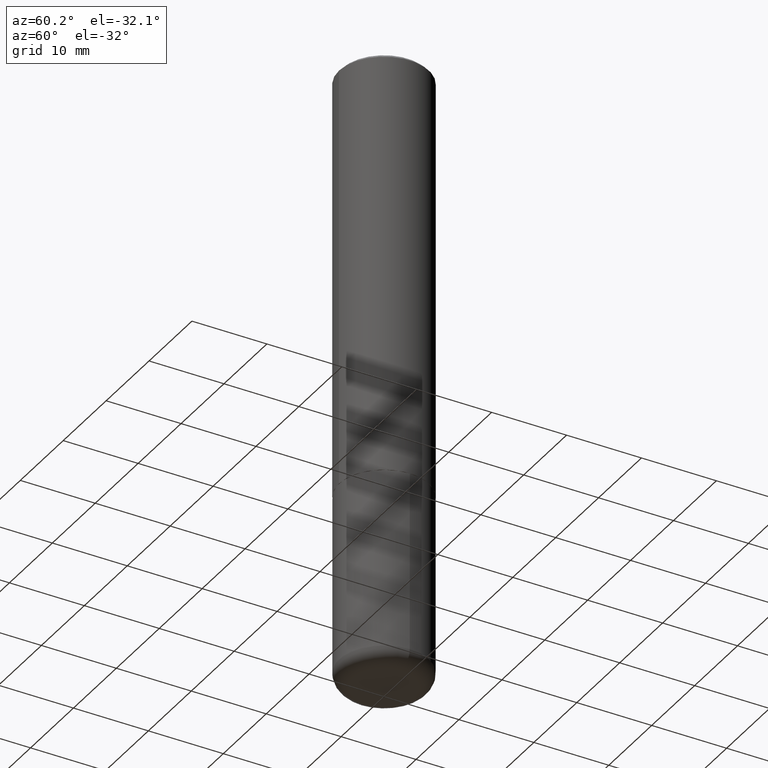
[diagram: clean part render]
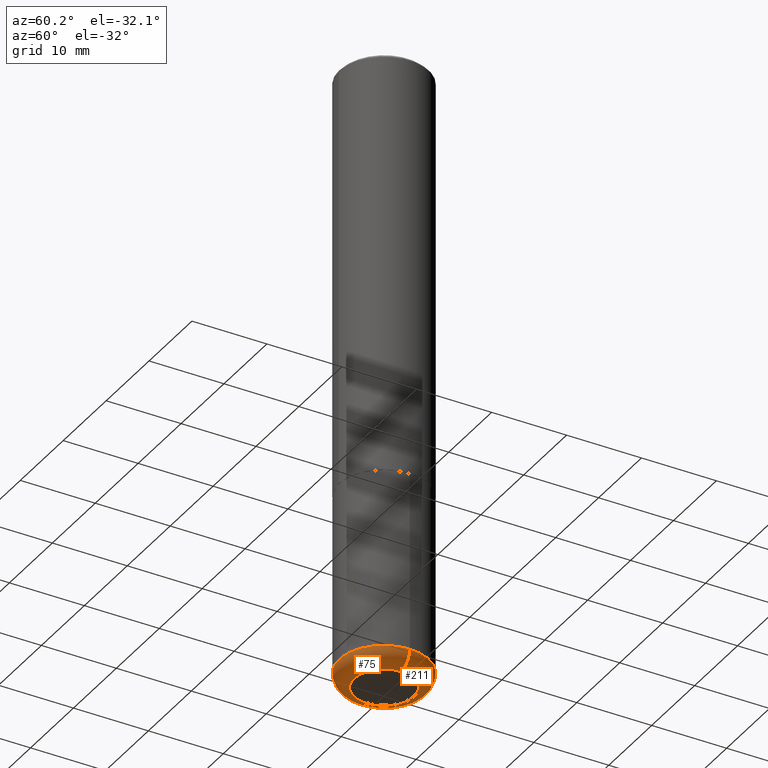
[diagram: same view with one multi-face feature highlighted, each face labeled with its STEP entity id]
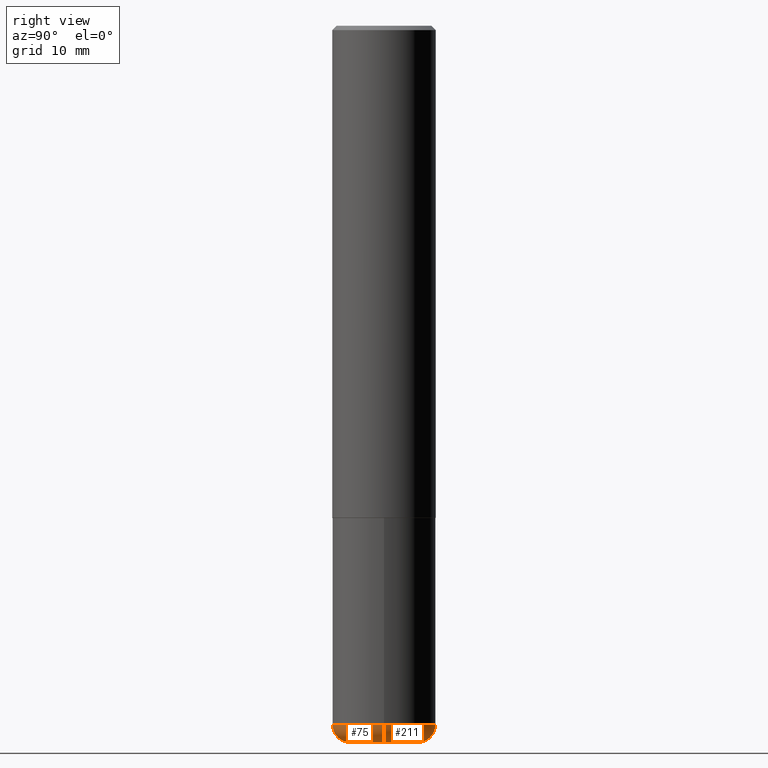
[diagram: same view with one multi-face feature highlighted, each face labeled with its STEP entity id]
A machine part, auxiliary view. The highlighted faces form ONE feature: a constant-radius fillet chain: 2 tangent blend faces with common blend radius 1.999 mm. The faces share edges in the B-rep.
A second angle (right view) of the same feature is appended — it is thin or edge-on in the first view.
Their STEP definitions:
[1] entity #75 (Torus):
#1 = ORIENTED_EDGE ( 'NONE', *, *, #108, .T. ) ;
#10 = VERTEX_POINT ( 'NONE', #325 ) ;
#36 = AXIS2_PLACEMENT_3D ( 'NONE', #192, #101, #74 ) ;
#43 = CIRCLE ( 'NONE', #167, 0.1575000000000000011 ) ;
#44 = DIRECTION ( 'NONE',  ( -2.445468806185136597E-29, 3.491481338843145583E-15, 1.000000000000000000 ) ) ;
#62 = CIRCLE ( 'NONE', #112, 0.2362000000000000210 ) ;
#64 = EDGE_CURVE ( 'NONE', #378, #410, #166, .T. ) ;
#71 = CARTESIAN_POINT ( 'NONE',  ( 7.798600022924401307E-29, -1.113433398957079310E-14, -3.189000000000000501 ) ) ;
#74 = DIRECTION ( 'NONE',  ( -1.000000000000000000, 7.105427357600995548E-15, 0.000000000000000000 ) ) ;
#75 = ADVANCED_FACE ( 'NONE', ( #263 ), #345, .T. ) ;
#101 = DIRECTION ( 'NONE',  ( 7.105427357601001859E-15, 1.000000000000000000, -3.491481338843145583E-15 ) ) ;
#108 = EDGE_CURVE ( 'NONE', #378, #347, #43, .T. ) ;
#112 = AXIS2_PLACEMENT_3D ( 'NONE', #274, #198, #408 ) ;
#113 = CARTESIAN_POINT ( 'NONE',  ( 0.1575000000000000011, -1.223415061130637979E-14, -3.189000000000000501 ) ) ;
#122 = ORIENTED_EDGE ( 'NONE', *, *, #64, .F. ) ;
#129 = EDGE_LOOP ( 'NONE', ( #122, #1, #227, #154 ) ) ;
#137 = EDGE_CURVE ( 'NONE', #347, #10, #307, .T. ) ;
#154 = ORIENTED_EDGE ( 'NONE', *, *, #288, .F. ) ;
#166 = CIRCLE ( 'NONE', #36, 0.07869999999999996443 ) ;
#167 = AXIS2_PLACEMENT_3D ( 'NONE', #392, #44, #293 ) ;
#187 = CARTESIAN_POINT ( 'NONE',  ( -0.1575000000000000011, -9.873020404910514350E-15, -3.267700000000000049 ) ) ;
#192 = CARTESIAN_POINT ( 'NONE',  ( -0.1575000000000000011, -1.001522918074863550E-14, -3.189000000000000501 ) ) ;
#198 = DIRECTION ( 'NONE',  ( -2.445468806185136597E-29, 3.491481338843145583E-15, 1.000000000000000000 ) ) ;
#213 = CARTESIAN_POINT ( 'NONE',  ( 0.1575000000000000011, -1.250893019267333313E-14, -3.267700000000000049 ) ) ;
#227 = ORIENTED_EDGE ( 'NONE', *, *, #137, .T. ) ;
#263 = FACE_OUTER_BOUND ( 'NONE', #129, .T. ) ;
#274 = CARTESIAN_POINT ( 'NONE',  ( 7.798600022924401307E-29, -1.113433398957079310E-14, -3.189000000000000501 ) ) ;
#288 = EDGE_CURVE ( 'NONE', #410, #10, #62, .T. ) ;
#293 = DIRECTION ( 'NONE',  ( 1.000000000000000000, -6.982962677686261977E-15, 0.000000000000000000 ) ) ;
#295 = DIRECTION ( 'NONE',  ( 1.000000000000000000, -6.982962677686265922E-15, 4.883557194083112340E-29 ) ) ;
#307 = CIRCLE ( 'NONE', #380, 0.07869999999999996443 ) ;
#325 = CARTESIAN_POINT ( 'NONE',  ( 0.2361999999999999933, -1.278370977404028805E-14, -3.189000000000000501 ) ) ;
#345 = TOROIDAL_SURFACE ( 'NONE', #365, 0.1575000000000000011, 0.07869999999999996443 ) ;
#347 = VERTEX_POINT ( 'NONE', #213 ) ;
#364 = DIRECTION ( 'NONE',  ( -6.982962677686266711E-15, -1.000000000000000000, 3.491481338843145583E-15 ) ) ;
#365 = AXIS2_PLACEMENT_3D ( 'NONE', #71, #390, #295 ) ;
#369 = DIRECTION ( 'NONE',  ( 1.000000000000000000, -6.982962677686273021E-15, 0.000000000000000000 ) ) ;
#376 = CARTESIAN_POINT ( 'NONE',  ( -0.2361999999999999933, -9.456032047705438285E-15, -3.189000000000000501 ) ) ;
#378 = VERTEX_POINT ( 'NONE', #187 ) ;
#380 = AXIS2_PLACEMENT_3D ( 'NONE', #113, #364, #369 ) ;
#390 = DIRECTION ( 'NONE',  ( -2.445468806185136597E-29, 3.491481338843145583E-15, 1.000000000000000000 ) ) ;
#392 = CARTESIAN_POINT ( 'NONE',  ( 7.991058417971171713E-29, -1.140911357093774644E-14, -3.267700000000000049 ) ) ;
#408 = DIRECTION ( 'NONE',  ( 1.000000000000000000, -6.982962677686264344E-15, 0.000000000000000000 ) ) ;
#410 = VERTEX_POINT ( 'NONE', #376 ) ;
[2] entity #211 (Torus):
#10 = VERTEX_POINT ( 'NONE', #325 ) ;
#26 = CARTESIAN_POINT ( 'NONE',  ( 7.991058417971171713E-29, -1.140911357093774644E-14, -3.267700000000000049 ) ) ;
#36 = AXIS2_PLACEMENT_3D ( 'NONE', #192, #101, #74 ) ;
#41 = DIRECTION ( 'NONE',  ( -2.445468806185136597E-29, 3.491481338843145583E-15, 1.000000000000000000 ) ) ;
#45 = DIRECTION ( 'NONE',  ( 1.000000000000000000, -6.982962677686264344E-15, 0.000000000000000000 ) ) ;
#64 = EDGE_CURVE ( 'NONE', #378, #410, #166, .T. ) ;
#72 = AXIS2_PLACEMENT_3D ( 'NONE', #191, #41, #45 ) ;
#74 = DIRECTION ( 'NONE',  ( -1.000000000000000000, 7.105427357600995548E-15, 0.000000000000000000 ) ) ;
#97 = EDGE_LOOP ( 'NONE', ( #257, #134, #223, #287 ) ) ;
#98 = EDGE_CURVE ( 'NONE', #10, #410, #261, .T. ) ;
#101 = DIRECTION ( 'NONE',  ( 7.105427357601001859E-15, 1.000000000000000000, -3.491481338843145583E-15 ) ) ;
#106 = FACE_OUTER_BOUND ( 'NONE', #97, .T. ) ;
#113 = CARTESIAN_POINT ( 'NONE',  ( 0.1575000000000000011, -1.223415061130637979E-14, -3.189000000000000501 ) ) ;
#134 = ORIENTED_EDGE ( 'NONE', *, *, #64, .T. ) ;
#137 = EDGE_CURVE ( 'NONE', #347, #10, #307, .T. ) ;
#166 = CIRCLE ( 'NONE', #36, 0.07869999999999996443 ) ;
#187 = CARTESIAN_POINT ( 'NONE',  ( -0.1575000000000000011, -9.873020404910514350E-15, -3.267700000000000049 ) ) ;
#191 = CARTESIAN_POINT ( 'NONE',  ( 7.798600022924401307E-29, -1.113433398957079310E-14, -3.189000000000000501 ) ) ;
#192 = CARTESIAN_POINT ( 'NONE',  ( -0.1575000000000000011, -1.001522918074863550E-14, -3.189000000000000501 ) ) ;
#211 = ADVANCED_FACE ( 'NONE', ( #106 ), #324, .T. ) ;
#213 = CARTESIAN_POINT ( 'NONE',  ( 0.1575000000000000011, -1.250893019267333313E-14, -3.267700000000000049 ) ) ;
#215 = DIRECTION ( 'NONE',  ( 1.000000000000000000, -6.982962677686261977E-15, 0.000000000000000000 ) ) ;
#221 = DIRECTION ( 'NONE',  ( -2.445468806185136597E-29, 3.491481338843145583E-15, 1.000000000000000000 ) ) ;
#223 = ORIENTED_EDGE ( 'NONE', *, *, #98, .F. ) ;
#248 = CIRCLE ( 'NONE', #285, 0.1575000000000000011 ) ;
#257 = ORIENTED_EDGE ( 'NONE', *, *, #321, .T. ) ;
#261 = CIRCLE ( 'NONE', #72, 0.2362000000000000210 ) ;
#277 = CARTESIAN_POINT ( 'NONE',  ( 7.798600022924401307E-29, -1.113433398957079310E-14, -3.189000000000000501 ) ) ;
#285 = AXIS2_PLACEMENT_3D ( 'NONE', #26, #221, #215 ) ;
#287 = ORIENTED_EDGE ( 'NONE', *, *, #137, .F. ) ;
#307 = CIRCLE ( 'NONE', #380, 0.07869999999999996443 ) ;
#321 = EDGE_CURVE ( 'NONE', #347, #378, #248, .T. ) ;
#324 = TOROIDAL_SURFACE ( 'NONE', #358, 0.1575000000000000011, 0.07869999999999996443 ) ;
#325 = CARTESIAN_POINT ( 'NONE',  ( 0.2361999999999999933, -1.278370977404028805E-14, -3.189000000000000501 ) ) ;
#347 = VERTEX_POINT ( 'NONE', #213 ) ;
#358 = AXIS2_PLACEMENT_3D ( 'NONE', #277, #399, #362 ) ;
#362 = DIRECTION ( 'NONE',  ( 1.000000000000000000, -6.982962677686265922E-15, 4.883557194083112340E-29 ) ) ;
#364 = DIRECTION ( 'NONE',  ( -6.982962677686266711E-15, -1.000000000000000000, 3.491481338843145583E-15 ) ) ;
#369 = DIRECTION ( 'NONE',  ( 1.000000000000000000, -6.982962677686273021E-15, 0.000000000000000000 ) ) ;
#376 = CARTESIAN_POINT ( 'NONE',  ( -0.2361999999999999933, -9.456032047705438285E-15, -3.189000000000000501 ) ) ;
#378 = VERTEX_POINT ( 'NONE', #187 ) ;
#380 = AXIS2_PLACEMENT_3D ( 'NONE', #113, #364, #369 ) ;
#399 = DIRECTION ( 'NONE',  ( -2.445468806185136597E-29, 3.491481338843145583E-15, 1.000000000000000000 ) ) ;
#410 = VERTEX_POINT ( 'NONE', #376 ) ;